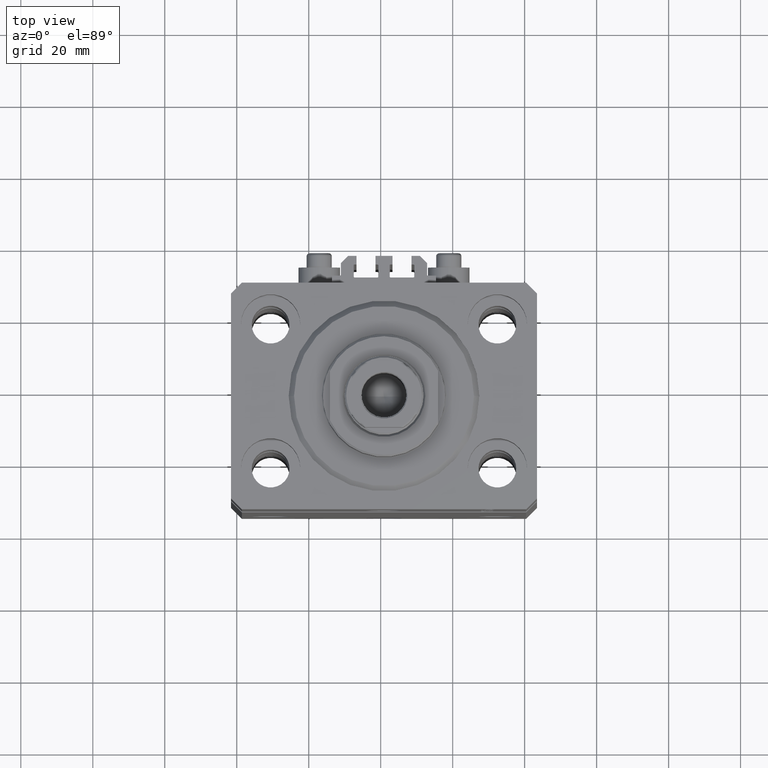
[diagram: clean part render]
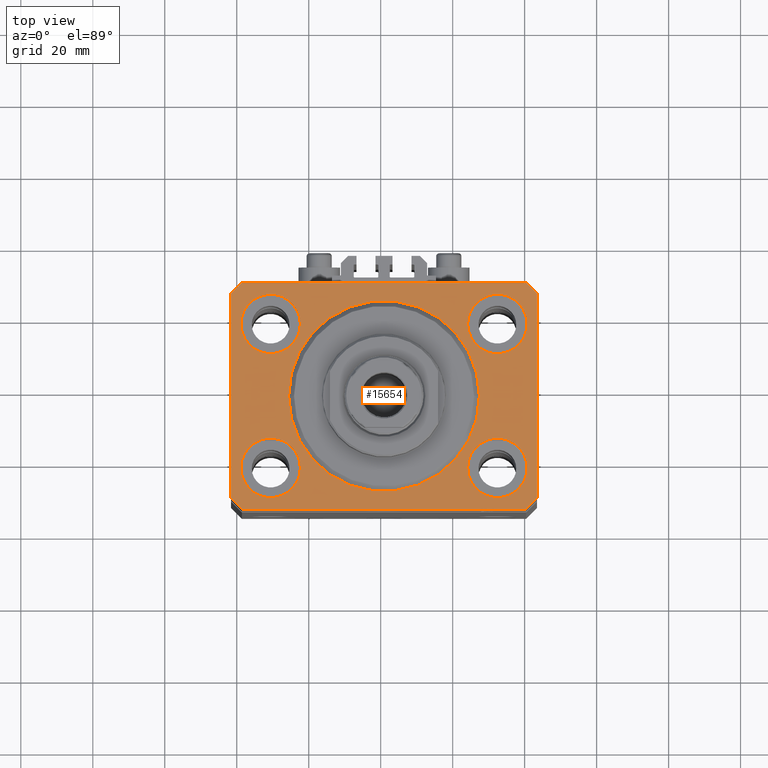
[diagram: same view with one face highlighted and labeled with its STEP entity id]
A machine part, top view. The second image highlights one B-rep face of the part: STEP entity #15654.
In plain terms, the highlighted planar face has unit normal (0, 0, 1).
Its self-contained STEP definition (entity closure, byte-faithful):
#127 = VERTEX_POINT ( 'NONE', #7714 ) ;
#131 = CARTESIAN_POINT ( 'NONE',  ( 31.50000000000000000, 20.00000000000001066, 0.000000000000000000 ) ) ;
#350 = CARTESIAN_POINT ( 'NONE',  ( 23.25000000000000355, 20.00000000000001066, 0.000000000000000000 ) ) ;
#581 = DIRECTION ( 'NONE',  ( 0.000000000000000000, 0.000000000000000000, 1.000000000000000000 ) ) ;
#773 = EDGE_CURVE ( 'NONE', #27058, #43654, #17460, .T. ) ;
#1130 = AXIS2_PLACEMENT_3D ( 'NONE', #42453, #8984, #31617 ) ;
#1161 = VERTEX_POINT ( 'NONE', #20850 ) ;
#1218 = DIRECTION ( 'NONE',  ( 0.7071067811865483499, 0.7071067811865466846, 0.000000000000000000 ) ) ;
#1221 = ORIENTED_EDGE ( 'NONE', *, *, #11959, .F. ) ;
#1326 = VERTEX_POINT ( 'NONE', #10500 ) ;
#1454 = ORIENTED_EDGE ( 'NONE', *, *, #8763, .F. ) ;
#1675 = LINE ( 'NONE', #6118, #26230 ) ;
#1712 = VECTOR ( 'NONE', #2701, 1000.000000000000000 ) ;
#1963 = CARTESIAN_POINT ( 'NONE',  ( -39.50000000000000711, -31.50000000000000000, 0.000000000000000000 ) ) ;
#2549 = VERTEX_POINT ( 'NONE', #350 ) ;
#2701 = DIRECTION ( 'NONE',  ( 1.000000000000000000, 0.000000000000000000, 0.000000000000000000 ) ) ;
#2945 = CARTESIAN_POINT ( 'NONE',  ( 39.74999999999999289, -20.00000000000000000, 0.000000000000000000 ) ) ;
#3121 = DIRECTION ( 'NONE',  ( 0.000000000000000000, 0.000000000000000000, 1.000000000000000000 ) ) ;
#3153 = FACE_BOUND ( 'NONE', #43776, .T. ) ;
#3361 = DIRECTION ( 'NONE',  ( 1.000000000000000000, 0.000000000000000000, 0.000000000000000000 ) ) ;
#3405 = AXIS2_PLACEMENT_3D ( 'NONE', #16230, #41595, #12046 ) ;
#3452 = ORIENTED_EDGE ( 'NONE', *, *, #41424, .T. ) ;
#3735 = DIRECTION ( 'NONE',  ( 1.000000000000000000, 0.000000000000000000, 0.000000000000000000 ) ) ;
#4776 = ORIENTED_EDGE ( 'NONE', *, *, #32890, .F. ) ;
#5146 = CARTESIAN_POINT ( 'NONE',  ( 39.50000000000000711, -31.50000000000000000, 0.000000000000000000 ) ) ;
#5569 = DIRECTION ( 'NONE',  ( -0.7071067811865356934, 0.7071067811865594521, 0.000000000000000000 ) ) ;
#5816 = EDGE_CURVE ( 'NONE', #27531, #17739, #32414, .T. ) ;
#5863 = DIRECTION ( 'NONE',  ( 8.886653596232072440E-15, 1.000000000000000000, 0.000000000000000000 ) ) ;
#6080 = LINE ( 'NONE', #42966, #38091 ) ;
#6118 = CARTESIAN_POINT ( 'NONE',  ( 42.50000000000000711, -28.50000000000000355, 0.000000000000000000 ) ) ;
#6736 = VERTEX_POINT ( 'NONE', #27906 ) ;
#6846 = CIRCLE ( 'NONE', #48453, 8.250000000000000000 ) ;
#7086 = CARTESIAN_POINT ( 'NONE',  ( 0.000000000000000000, 0.000000000000000000, 0.000000000000000000 ) ) ;
#7253 = VERTEX_POINT ( 'NONE', #30504 ) ;
#7390 = CARTESIAN_POINT ( 'NONE',  ( -39.75000000000000000, -20.00000000000000000, 0.000000000000000000 ) ) ;
#7714 = CARTESIAN_POINT ( 'NONE',  ( -42.50000000000000000, 28.50000000000000000, 0.000000000000000000 ) ) ;
#8503 = DIRECTION ( 'NONE',  ( 0.7071067811865471286, -0.7071067811865479058, 0.000000000000000000 ) ) ;
#8763 = EDGE_CURVE ( 'NONE', #1326, #41869, #36467, .T. ) ;
#8984 = DIRECTION ( 'NONE',  ( 0.000000000000000000, 0.000000000000000000, 1.000000000000000000 ) ) ;
#9178 = DIRECTION ( 'NONE',  ( 0.000000000000000000, 0.000000000000000000, 1.000000000000000000 ) ) ;
#9264 = CARTESIAN_POINT ( 'NONE',  ( 26.50000000000000355, 0.000000000000000000, 0.000000000000000000 ) ) ;
#9420 = CARTESIAN_POINT ( 'NONE',  ( -31.50000000000000000, -20.00000000000000000, 0.000000000000000000 ) ) ;
#10500 = CARTESIAN_POINT ( 'NONE',  ( -39.75000000000000000, 20.00000000000000000, 0.000000000000000000 ) ) ;
#10715 = AXIS2_PLACEMENT_3D ( 'NONE', #35505, #46571, #46088 ) ;
#10840 = ORIENTED_EDGE ( 'NONE', *, *, #5816, .F. ) ;
#10966 = VERTEX_POINT ( 'NONE', #9264 ) ;
#11000 = FACE_BOUND ( 'NONE', #38132, .T. ) ;
#11086 = EDGE_CURVE ( 'NONE', #19113, #1161, #6080, .T. ) ;
#11441 = EDGE_CURVE ( 'NONE', #43654, #48294, #38604, .T. ) ;
#11940 = CARTESIAN_POINT ( 'NONE',  ( -42.50000000000000000, -28.50000000000000000, 0.000000000000000000 ) ) ;
#11959 = EDGE_CURVE ( 'NONE', #40378, #7253, #31927, .T. ) ;
#12019 = CIRCLE ( 'NONE', #3405, 8.249999999999992895 ) ;
#12046 = DIRECTION ( 'NONE',  ( 1.000000000000000000, 0.000000000000000000, 0.000000000000000000 ) ) ;
#12869 = CIRCLE ( 'NONE', #22299, 8.250000000000000000 ) ;
#13426 = DIRECTION ( 'NONE',  ( 0.000000000000000000, -1.000000000000000000, 0.000000000000000000 ) ) ;
#13993 = FACE_BOUND ( 'NONE', #32247, .T. ) ;
#14423 = ORIENTED_EDGE ( 'NONE', *, *, #11441, .T. ) ;
#14500 = EDGE_CURVE ( 'NONE', #19844, #27058, #15642, .T. ) ;
#14645 = DIRECTION ( 'NONE',  ( 1.000000000000000000, 0.000000000000000000, 0.000000000000000000 ) ) ;
#15217 = AXIS2_PLACEMENT_3D ( 'NONE', #19263, #581, #34021 ) ;
#15642 = LINE ( 'NONE', #11940, #44876 ) ;
#15654 = ADVANCED_FACE ( 'NONE', ( #25787, #3153, #11000, #13993, #40321, #21605 ), #48416, .T. ) ;
#15753 = CARTESIAN_POINT ( 'NONE',  ( 0.000000000000000000, 0.000000000000000000, 0.000000000000000000 ) ) ;
#16230 = CARTESIAN_POINT ( 'NONE',  ( 31.50000000000000000, -20.00000000000000000, 0.000000000000000000 ) ) ;
#16317 = CARTESIAN_POINT ( 'NONE',  ( 42.50000000000051870, 28.49999999999995381, 0.000000000000000000 ) ) ;
#16386 = DIRECTION ( 'NONE',  ( -0.7071067811865471286, -0.7071067811865479058, 0.000000000000000000 ) ) ;
#16857 = CIRCLE ( 'NONE', #23946, 8.249999999999992895 ) ;
#16877 = CARTESIAN_POINT ( 'NONE',  ( -39.50000000000000711, 31.50000000000000000, 0.000000000000000000 ) ) ;
#17460 = LINE ( 'NONE', #1963, #1712 ) ;
#17680 = DIRECTION ( 'NONE',  ( 0.000000000000000000, 0.000000000000000000, 1.000000000000000000 ) ) ;
#17739 = VERTEX_POINT ( 'NONE', #2945 ) ;
#17827 = VECTOR ( 'NONE', #1218, 1000.000000000000000 ) ;
#17935 = ORIENTED_EDGE ( 'NONE', *, *, #48074, .F. ) ;
#19113 = VERTEX_POINT ( 'NONE', #16317 ) ;
#19263 = CARTESIAN_POINT ( 'NONE',  ( -31.50000000000000000, 20.00000000000000000, 0.000000000000000000 ) ) ;
#19538 = DIRECTION ( 'NONE',  ( 0.000000000000000000, 0.000000000000000000, 1.000000000000000000 ) ) ;
#19768 = EDGE_CURVE ( 'NONE', #48294, #19113, #1675, .T. ) ;
#19844 = VERTEX_POINT ( 'NONE', #28261 ) ;
#19966 = VECTOR ( 'NONE', #35324, 1000.000000000000000 ) ;
#20202 = CARTESIAN_POINT ( 'NONE',  ( 39.50000000000000711, -31.50000000000000000, 0.000000000000000000 ) ) ;
#20845 = VECTOR ( 'NONE', #16386, 1000.000000000000000 ) ;
#20850 = CARTESIAN_POINT ( 'NONE',  ( 39.50000000000056843, 31.50000000000000000, 0.000000000000000000 ) ) ;
#21069 = DIRECTION ( 'NONE',  ( 1.000000000000000000, 0.000000000000000000, 0.000000000000000000 ) ) ;
#21572 = CARTESIAN_POINT ( 'NONE',  ( -31.50000000000000000, 20.00000000000000000, 0.000000000000000000 ) ) ;
#21605 = FACE_OUTER_BOUND ( 'NONE', #27370, .T. ) ;
#22086 = DIRECTION ( 'NONE',  ( 1.000000000000000000, 0.000000000000000000, -0.000000000000000000 ) ) ;
#22236 = EDGE_CURVE ( 'NONE', #17739, #27531, #12019, .T. ) ;
#22299 = AXIS2_PLACEMENT_3D ( 'NONE', #21572, #3121, #3361 ) ;
#22641 = AXIS2_PLACEMENT_3D ( 'NONE', #43197, #24025, #21069 ) ;
#22646 = EDGE_LOOP ( 'NONE', ( #4776, #1221 ) ) ;
#22685 = EDGE_CURVE ( 'NONE', #41869, #1326, #12869, .T. ) ;
#22819 = ORIENTED_EDGE ( 'NONE', *, *, #40006, .F. ) ;
#23651 = ORIENTED_EDGE ( 'NONE', *, *, #14500, .T. ) ;
#23946 = AXIS2_PLACEMENT_3D ( 'NONE', #131, #38005, #14645 ) ;
#24025 = DIRECTION ( 'NONE',  ( 0.000000000000000000, 0.000000000000000000, 1.000000000000000000 ) ) ;
#24378 = EDGE_CURVE ( 'NONE', #1161, #6736, #35571, .T. ) ;
#24903 = CIRCLE ( 'NONE', #22641, 26.50000000000000355 ) ;
#25468 = CARTESIAN_POINT ( 'NONE',  ( 42.50000000000000711, -28.50000000000000355, 0.000000000000000000 ) ) ;
#25519 = EDGE_CURVE ( 'NONE', #2549, #44114, #16857, .T. ) ;
#25787 = FACE_BOUND ( 'NONE', #22646, .T. ) ;
#26083 = AXIS2_PLACEMENT_3D ( 'NONE', #7086, #17680, #22086 ) ;
#26212 = ORIENTED_EDGE ( 'NONE', *, *, #773, .T. ) ;
#26230 = VECTOR ( 'NONE', #5863, 1000.000000000000000 ) ;
#26453 = CARTESIAN_POINT ( 'NONE',  ( 39.74999999999999289, 20.00000000000001066, 0.000000000000000000 ) ) ;
#27058 = VERTEX_POINT ( 'NONE', #44511 ) ;
#27316 = ORIENTED_EDGE ( 'NONE', *, *, #22236, .F. ) ;
#27370 = EDGE_LOOP ( 'NONE', ( #43693, #3452, #29244, #23651, #26212, #14423, #42893, #41226 ) ) ;
#27531 = VERTEX_POINT ( 'NONE', #37790 ) ;
#27697 = AXIS2_PLACEMENT_3D ( 'NONE', #45605, #19538, #41204 ) ;
#27889 = DIRECTION ( 'NONE',  ( 1.000000000000000000, 0.000000000000000000, 0.000000000000000000 ) ) ;
#27906 = CARTESIAN_POINT ( 'NONE',  ( -39.50000000000000711, 31.50000000000000000, 0.000000000000000000 ) ) ;
#28261 = CARTESIAN_POINT ( 'NONE',  ( -42.50000000000000000, -28.50000000000000000, 0.000000000000000000 ) ) ;
#28916 = CIRCLE ( 'NONE', #33618, 26.50000000000000355 ) ;
#29210 = ORIENTED_EDGE ( 'NONE', *, *, #22685, .F. ) ;
#29244 = ORIENTED_EDGE ( 'NONE', *, *, #43239, .T. ) ;
#30003 = ORIENTED_EDGE ( 'NONE', *, *, #25519, .F. ) ;
#30090 = VERTEX_POINT ( 'NONE', #44074 ) ;
#30504 = CARTESIAN_POINT ( 'NONE',  ( -23.25000000000000000, -20.00000000000000000, 0.000000000000000000 ) ) ;
#31389 = LINE ( 'NONE', #16877, #20845 ) ;
#31617 = DIRECTION ( 'NONE',  ( 1.000000000000000000, 0.000000000000000000, 0.000000000000000000 ) ) ;
#31927 = CIRCLE ( 'NONE', #10715, 8.250000000000000000 ) ;
#32247 = EDGE_LOOP ( 'NONE', ( #29210, #1454 ) ) ;
#32414 = CIRCLE ( 'NONE', #27697, 8.249999999999992895 ) ;
#32890 = EDGE_CURVE ( 'NONE', #7253, #40378, #6846, .T. ) ;
#33434 = EDGE_CURVE ( 'NONE', #10966, #30090, #24903, .T. ) ;
#33618 = AXIS2_PLACEMENT_3D ( 'NONE', #15753, #45292, #3735 ) ;
#34021 = DIRECTION ( 'NONE',  ( 1.000000000000000000, 0.000000000000000000, 0.000000000000000000 ) ) ;
#35324 = DIRECTION ( 'NONE',  ( -1.000000000000000000, 0.000000000000000000, 0.000000000000000000 ) ) ;
#35467 = EDGE_LOOP ( 'NONE', ( #39589, #17935 ) ) ;
#35505 = CARTESIAN_POINT ( 'NONE',  ( -31.50000000000000000, -20.00000000000000000, 0.000000000000000000 ) ) ;
#35571 = LINE ( 'NONE', #38778, #19966 ) ;
#35805 = VECTOR ( 'NONE', #13426, 1000.000000000000000 ) ;
#35827 = LINE ( 'NONE', #47141, #35805 ) ;
#36467 = CIRCLE ( 'NONE', #15217, 8.250000000000000000 ) ;
#37790 = CARTESIAN_POINT ( 'NONE',  ( 23.25000000000000355, -20.00000000000000000, 0.000000000000000000 ) ) ;
#38005 = DIRECTION ( 'NONE',  ( 0.000000000000000000, 0.000000000000000000, 1.000000000000000000 ) ) ;
#38091 = VECTOR ( 'NONE', #5569, 1000.000000000000114 ) ;
#38132 = EDGE_LOOP ( 'NONE', ( #22819, #30003 ) ) ;
#38604 = LINE ( 'NONE', #5146, #17827 ) ;
#38778 = CARTESIAN_POINT ( 'NONE',  ( 39.50000000000056843, 31.50000000000000000, 0.000000000000000000 ) ) ;
#38842 = CIRCLE ( 'NONE', #1130, 8.249999999999992895 ) ;
#38898 = CARTESIAN_POINT ( 'NONE',  ( -23.25000000000000000, 20.00000000000000000, 0.000000000000000000 ) ) ;
#39589 = ORIENTED_EDGE ( 'NONE', *, *, #33434, .F. ) ;
#40006 = EDGE_CURVE ( 'NONE', #44114, #2549, #38842, .T. ) ;
#40321 = FACE_BOUND ( 'NONE', #35467, .T. ) ;
#40378 = VERTEX_POINT ( 'NONE', #7390 ) ;
#41204 = DIRECTION ( 'NONE',  ( 1.000000000000000000, 0.000000000000000000, 0.000000000000000000 ) ) ;
#41226 = ORIENTED_EDGE ( 'NONE', *, *, #11086, .T. ) ;
#41424 = EDGE_CURVE ( 'NONE', #6736, #127, #31389, .T. ) ;
#41595 = DIRECTION ( 'NONE',  ( 0.000000000000000000, 0.000000000000000000, 1.000000000000000000 ) ) ;
#41869 = VERTEX_POINT ( 'NONE', #38898 ) ;
#42453 = CARTESIAN_POINT ( 'NONE',  ( 31.50000000000000000, 20.00000000000001066, 0.000000000000000000 ) ) ;
#42893 = ORIENTED_EDGE ( 'NONE', *, *, #19768, .T. ) ;
#42966 = CARTESIAN_POINT ( 'NONE',  ( 42.50000000000051870, 28.49999999999995381, 0.000000000000000000 ) ) ;
#43197 = CARTESIAN_POINT ( 'NONE',  ( 0.000000000000000000, 0.000000000000000000, 0.000000000000000000 ) ) ;
#43239 = EDGE_CURVE ( 'NONE', #127, #19844, #35827, .T. ) ;
#43654 = VERTEX_POINT ( 'NONE', #20202 ) ;
#43693 = ORIENTED_EDGE ( 'NONE', *, *, #24378, .T. ) ;
#43776 = EDGE_LOOP ( 'NONE', ( #27316, #10840 ) ) ;
#44074 = CARTESIAN_POINT ( 'NONE',  ( -26.50000000000000355, 3.245314017740486554E-15, 0.000000000000000000 ) ) ;
#44114 = VERTEX_POINT ( 'NONE', #26453 ) ;
#44511 = CARTESIAN_POINT ( 'NONE',  ( -39.50000000000000711, -31.50000000000000000, 0.000000000000000000 ) ) ;
#44876 = VECTOR ( 'NONE', #8503, 1000.000000000000000 ) ;
#45292 = DIRECTION ( 'NONE',  ( 0.000000000000000000, 0.000000000000000000, 1.000000000000000000 ) ) ;
#45605 = CARTESIAN_POINT ( 'NONE',  ( 31.50000000000000000, -20.00000000000000000, 0.000000000000000000 ) ) ;
#46088 = DIRECTION ( 'NONE',  ( 1.000000000000000000, 0.000000000000000000, 0.000000000000000000 ) ) ;
#46571 = DIRECTION ( 'NONE',  ( 0.000000000000000000, 0.000000000000000000, 1.000000000000000000 ) ) ;
#47141 = CARTESIAN_POINT ( 'NONE',  ( -42.50000000000000000, 28.50000000000000000, 0.000000000000000000 ) ) ;
#48074 = EDGE_CURVE ( 'NONE', #30090, #10966, #28916, .T. ) ;
#48294 = VERTEX_POINT ( 'NONE', #25468 ) ;
#48416 = PLANE ( 'NONE',  #26083 ) ;
#48453 = AXIS2_PLACEMENT_3D ( 'NONE', #9420, #9178, #27889 ) ;